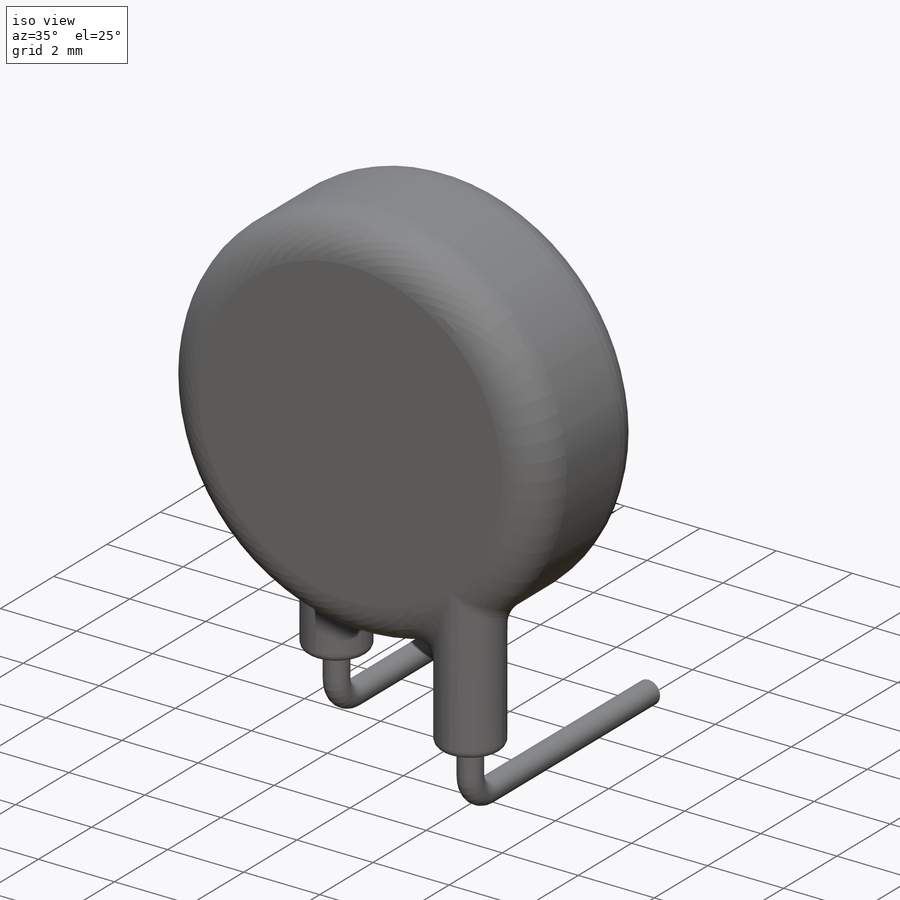
[diagram: iso view]
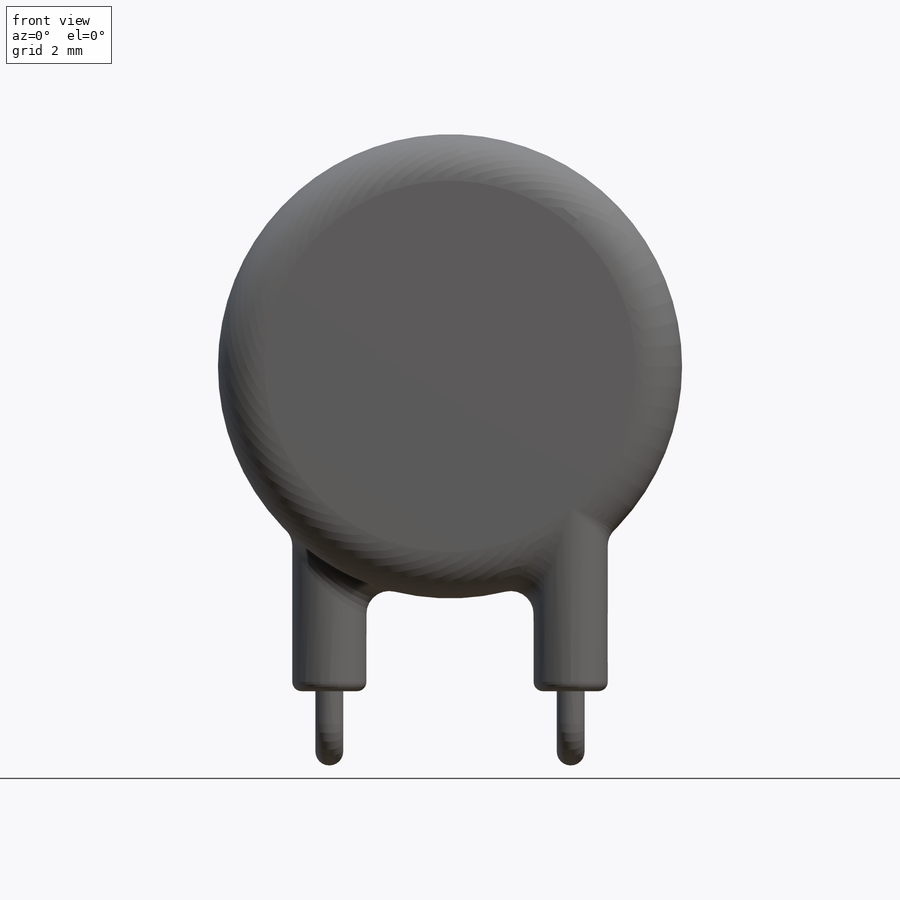
[diagram: front view]
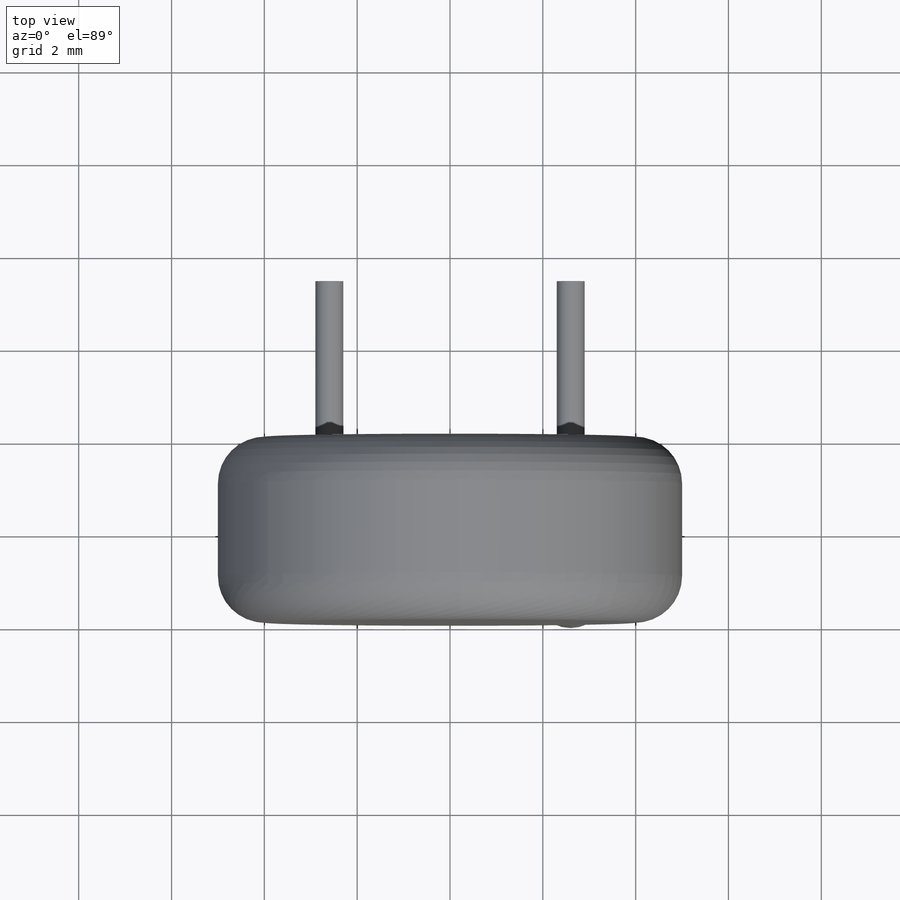
[diagram: top view]
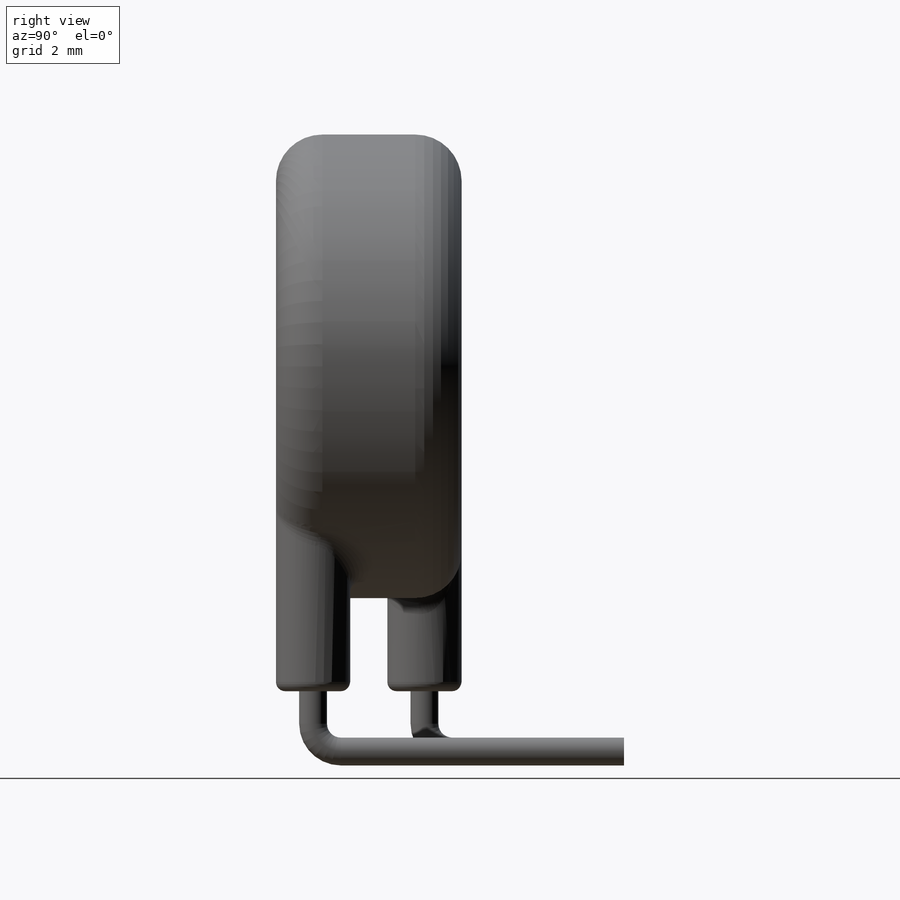
[diagram: right view]
SOLIDWORKS PART (.sldprt)
format: sldprt  version: not decoded by parser v0  size: 365,056 bytes
history: native  units: mm
features: sketch x7, plane x4, fillet x3, extrude x2, sweep x2, material x1 (+12 scaffold rows collapsed)
feature tree (31):
  scaffold x12  (default folders/planes/origin — collapsed)
  material  "Material <not specified>"
  sketch  "Sketch1"  dims[D2=10.0mm D1=2.0mm]
  extrude  "Boss-Extrude1"  Depth=4mm
  fillet  "Fillet1"  Radius=1mm
  sketch  "Sketch2"  dims[c1.D1=1.6mm c1.D2=1.6mm c1.D3=1.6mm c2.D2=2.6mm c2.D3=2.6mm c2.D4=~2.863564mm]
  extrude  "Boss-Extrude2"  Depth=4mm
  fillet  "Fillet2"  Radius=0.5mm
  sketch  "Sketch3"  dims[D1=0.6mm]
  plane  "Plane4"
  sketch  "Sketch6"  dims[D1=0.6mm D2=2.6mm]
  plane  "Plane6"
  fillet  "Fillet4"  Radius=0.2mm
  sketch  "Sketch7"
  plane  "Plane7"
  plane  "Plane8"
  sketch  "Sketch8"  dims[D3=0.6mm D4=0.6mm D1=3.5mm D2=1.3mm]
  sketch  "Sketch9"  dims[D1=0.6mm]
  sweep  "Sweep1"
  sweep  "Sweep2"
decode coverage: 11 of 14 modeling features carry decoded parameters
note: ~ marks probable driven/reference dimensions
note: suppression state not decoded; provenance and decode notes live in map.json
